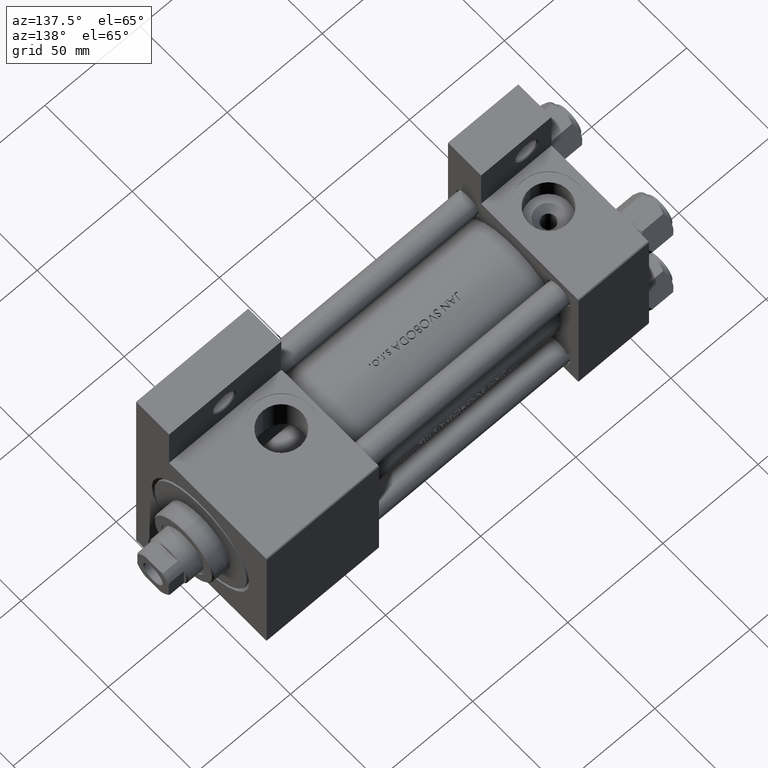
[diagram: clean part render]
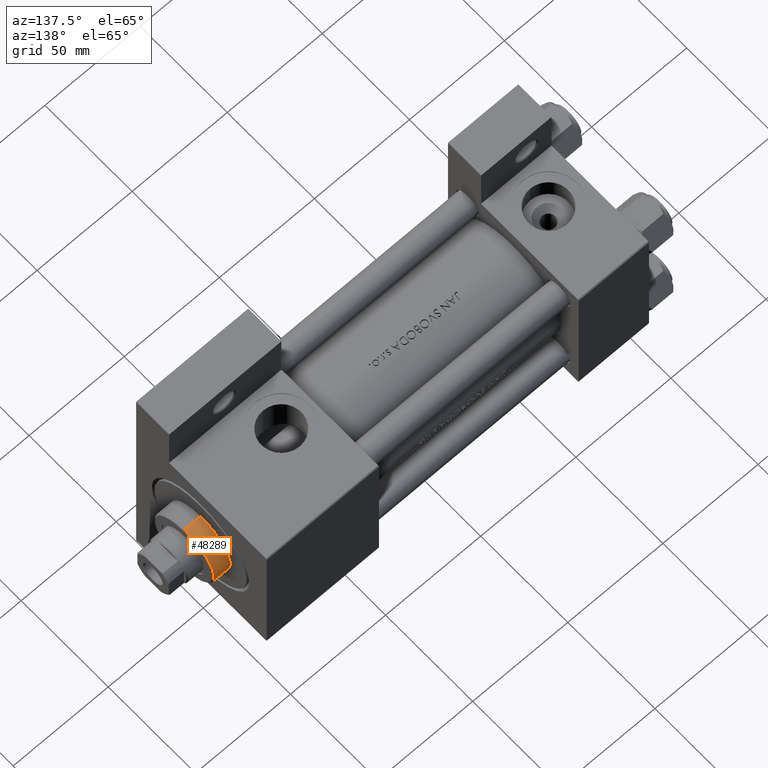
[diagram: same view with one face highlighted and labeled with its STEP entity id]
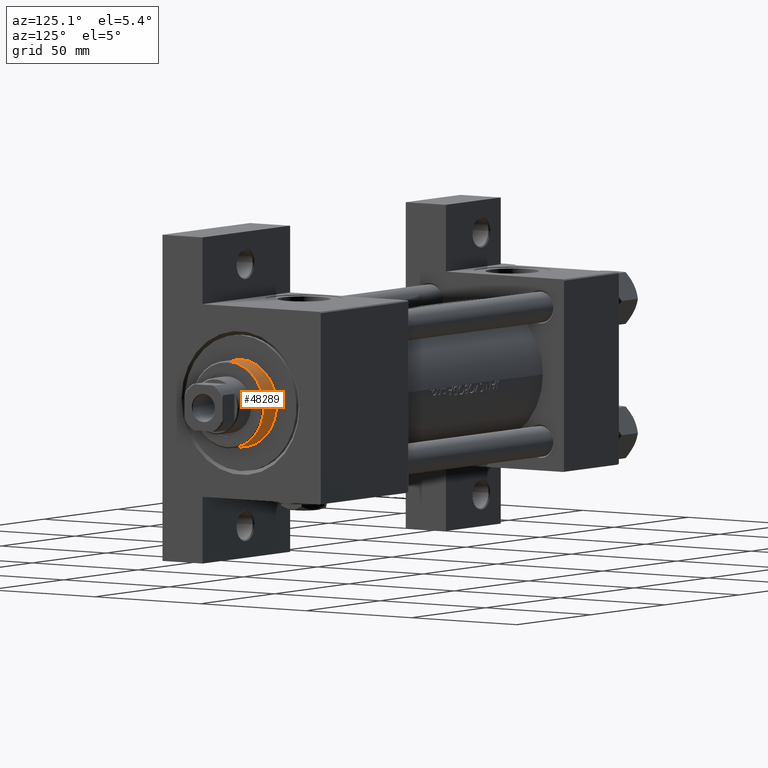
[diagram: same view with one face highlighted and labeled with its STEP entity id]
A machine part, auxiliary view. The second image highlights one B-rep face of the part: STEP entity #48289.
A second angle (auxiliary view) of the same face is appended — the face is thin or edge-on in the first view.
In plain terms, the highlighted cylindrical surface (partial cylindrical patch) has radius 17 mm, axis along (-1, -0, 0).
Its self-contained STEP definition (entity closure, byte-faithful):
#1200 = FACE_OUTER_BOUND ( 'NONE', #37330, .T. ) ;
#4143 = CARTESIAN_POINT ( 'NONE',  ( 0.000000000000000000, 0.000000000000000000, 28.69999999999999929 ) ) ;
#4371 = DIRECTION ( 'NONE',  ( 0.000000000000000000, 0.000000000000000000, -1.000000000000000000 ) ) ;
#6843 = VERTEX_POINT ( 'NONE', #16245 ) ;
#8109 = DIRECTION ( 'NONE',  ( 0.000000000000000000, 0.000000000000000000, 1.000000000000000000 ) ) ;
#8920 = DIRECTION ( 'NONE',  ( -1.000000000000000000, 0.000000000000000000, 0.000000000000000000 ) ) ;
#11021 = AXIS2_PLACEMENT_3D ( 'NONE', #23863, #35320, #8920 ) ;
#12407 = ORIENTED_EDGE ( 'NONE', *, *, #37093, .T. ) ;
#12568 = VECTOR ( 'NONE', #37888, 1000.000000000000000 ) ;
#13052 = CARTESIAN_POINT ( 'NONE',  ( 17.00000000000000000, 2.081899558550500280E-15, 37.69999999999999574 ) ) ;
#14594 = ORIENTED_EDGE ( 'NONE', *, *, #47320, .F. ) ;
#15818 = DIRECTION ( 'NONE',  ( 1.000000000000000000, 0.000000000000000000, 0.000000000000000000 ) ) ;
#16245 = CARTESIAN_POINT ( 'NONE',  ( 17.00000000000000000, 2.081899558550500280E-15, 28.69999999999999929 ) ) ;
#16387 = CYLINDRICAL_SURFACE ( 'NONE', #11021, 17.00000000000000000 ) ;
#16608 = CARTESIAN_POINT ( 'NONE',  ( -17.00000000000000000, 0.000000000000000000, 28.69999999999999929 ) ) ;
#16873 = CARTESIAN_POINT ( 'NONE',  ( -17.00000000000000000, 0.000000000000000000, 37.19999999999999574 ) ) ;
#17223 = AXIS2_PLACEMENT_3D ( 'NONE', #4143, #8109, #15818 ) ;
#19028 = VERTEX_POINT ( 'NONE', #16873 ) ;
#22263 = ORIENTED_EDGE ( 'NONE', *, *, #46004, .T. ) ;
#23863 = CARTESIAN_POINT ( 'NONE',  ( 0.000000000000000000, 0.000000000000000000, 37.69999999999999574 ) ) ;
#25072 = ORIENTED_EDGE ( 'NONE', *, *, #44272, .T. ) ;
#26773 = CARTESIAN_POINT ( 'NONE',  ( 0.000000000000000000, 0.000000000000000000, 37.19999999999999574 ) ) ;
#32306 = VERTEX_POINT ( 'NONE', #16608 ) ;
#34159 = LINE ( 'NONE', #38131, #12568 ) ;
#35320 = DIRECTION ( 'NONE',  ( -0.000000000000000000, -0.000000000000000000, -1.000000000000000000 ) ) ;
#35684 = VERTEX_POINT ( 'NONE', #44813 ) ;
#36973 = VECTOR ( 'NONE', #44437, 1000.000000000000000 ) ;
#37093 = EDGE_CURVE ( 'NONE', #35684, #6843, #47192, .T. ) ;
#37330 = EDGE_LOOP ( 'NONE', ( #22263, #12407, #25072, #14594 ) ) ;
#37888 = DIRECTION ( 'NONE',  ( -0.000000000000000000, -0.000000000000000000, -1.000000000000000000 ) ) ;
#37977 = CIRCLE ( 'NONE', #38779, 17.00000000000000000 ) ;
#38131 = CARTESIAN_POINT ( 'NONE',  ( -17.00000000000000000, 0.000000000000000000, 37.69999999999999574 ) ) ;
#38779 = AXIS2_PLACEMENT_3D ( 'NONE', #26773, #4371, #41257 ) ;
#41257 = DIRECTION ( 'NONE',  ( 1.000000000000000000, 0.000000000000000000, 0.000000000000000000 ) ) ;
#41895 = CIRCLE ( 'NONE', #17223, 17.00000000000000000 ) ;
#44272 = EDGE_CURVE ( 'NONE', #6843, #32306, #41895, .T. ) ;
#44437 = DIRECTION ( 'NONE',  ( -0.000000000000000000, -0.000000000000000000, -1.000000000000000000 ) ) ;
#44813 = CARTESIAN_POINT ( 'NONE',  ( 17.00000000000000000, 2.081899558550500280E-15, 37.19999999999999574 ) ) ;
#46004 = EDGE_CURVE ( 'NONE', #19028, #35684, #37977, .T. ) ;
#47192 = LINE ( 'NONE', #13052, #36973 ) ;
#47320 = EDGE_CURVE ( 'NONE', #19028, #32306, #34159, .T. ) ;
#48289 = ADVANCED_FACE ( 'NONE', ( #1200 ), #16387, .T. ) ;